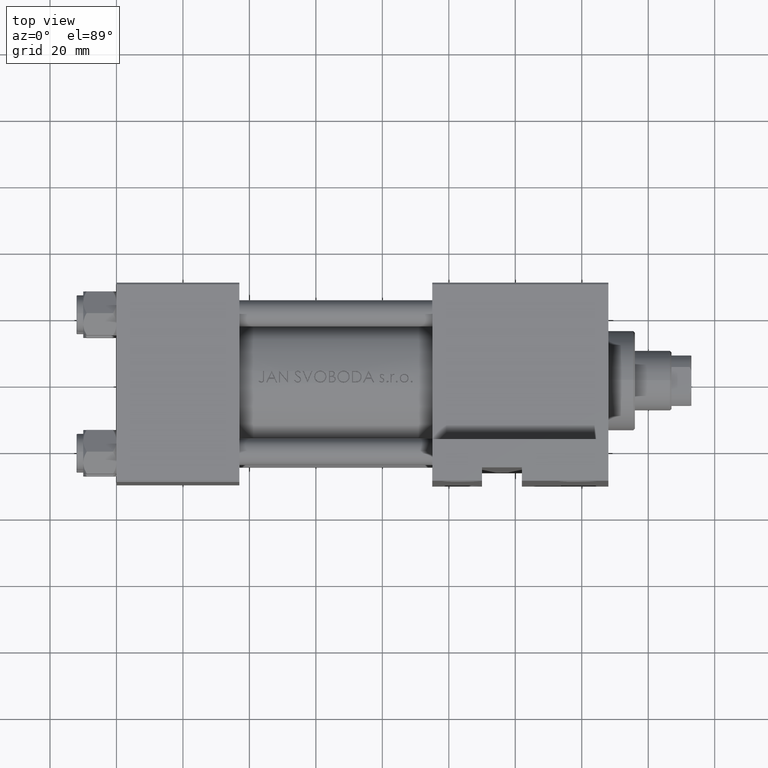
[diagram: clean part render]
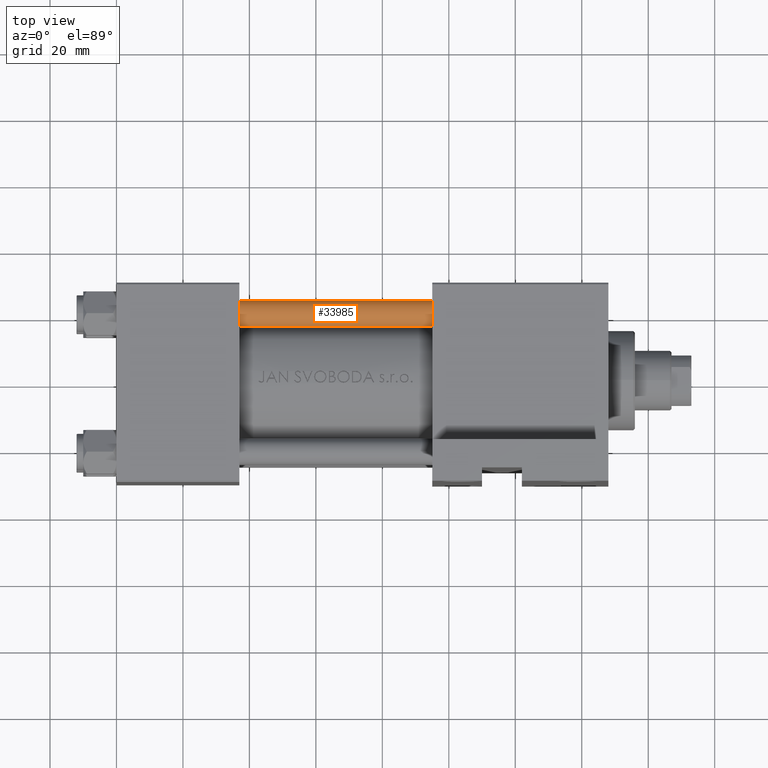
[diagram: same view with one face highlighted and labeled with its STEP entity id]
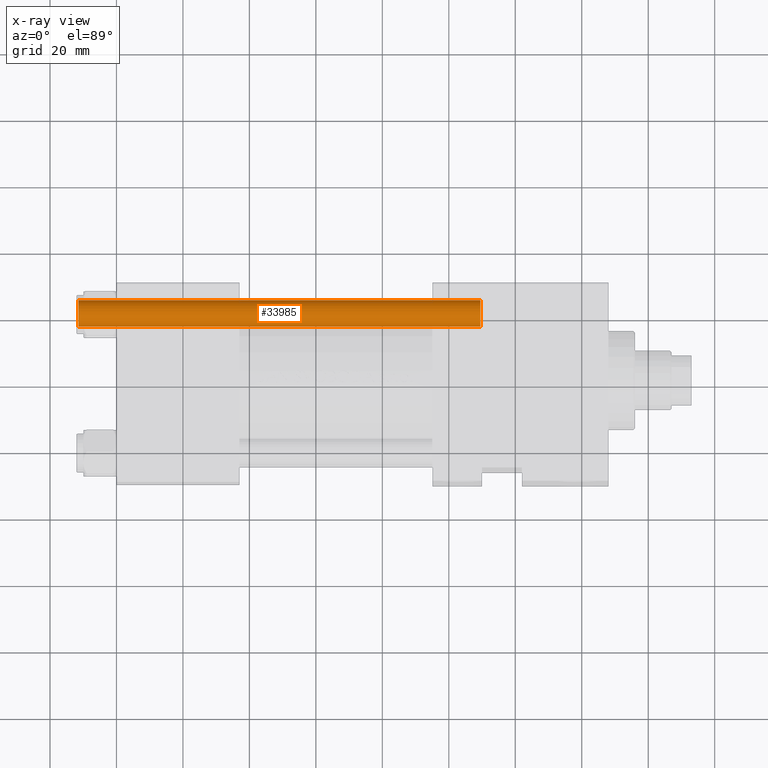
[diagram: x-ray of the same camera — body ghosted, the highlighted face saturated]
A machine part, top view. The second image highlights one B-rep face of the part: STEP entity #33985.
The next image is the same camera in x-ray: the body ghosted, the highlighted face saturated — about 0% of this face is hidden behind the body in this view.
In plain terms, the highlighted cylindrical surface (edge-blend (fillet) strip) has radius 4 mm, axis along (1, -0, 0).
Its self-contained STEP definition (entity closure, byte-faithful):
#1642 = CYLINDRICAL_SURFACE ( 'NONE', #17684, 4.000000000000000000 ) ;
#1813 = DIRECTION ( 'NONE',  ( -0.000000000000000000, -0.000000000000000000, -1.000000000000000000 ) ) ;
#2499 = EDGE_CURVE ( 'NONE', #40016, #12205, #13375, .T. ) ;
#5483 = LINE ( 'NONE', #21000, #14796 ) ;
#6338 = VERTEX_POINT ( 'NONE', #26594 ) ;
#7508 = ORIENTED_EDGE ( 'NONE', *, *, #25162, .T. ) ;
#8651 = CARTESIAN_POINT ( 'NONE',  ( -4.000000000000000000, 0.000000000000000000, 122.0000000000000000 ) ) ;
#11071 = EDGE_CURVE ( 'NONE', #6338, #40016, #27379, .T. ) ;
#11277 = AXIS2_PLACEMENT_3D ( 'NONE', #45533, #21424, #36473 ) ;
#12205 = VERTEX_POINT ( 'NONE', #22706 ) ;
#12974 = CARTESIAN_POINT ( 'NONE',  ( 0.000000000000000000, 0.000000000000000000, 122.0000000000000000 ) ) ;
#13375 = CIRCLE ( 'NONE', #28306, 4.000000000000000000 ) ;
#14402 = CARTESIAN_POINT ( 'NONE',  ( -4.000000000000000000, 0.000000000000000000, 0.5000000000000559552 ) ) ;
#14796 = VECTOR ( 'NONE', #1813, 1000.000000000000000 ) ;
#15594 = ORIENTED_EDGE ( 'NONE', *, *, #2499, .T. ) ;
#16905 = DIRECTION ( 'NONE',  ( -0.000000000000000000, -0.000000000000000000, -1.000000000000000000 ) ) ;
#17684 = AXIS2_PLACEMENT_3D ( 'NONE', #12974, #16905, #31935 ) ;
#19784 = VECTOR ( 'NONE', #35048, 1000.000000000000000 ) ;
#20709 = CIRCLE ( 'NONE', #11277, 4.000000000000000000 ) ;
#21000 = CARTESIAN_POINT ( 'NONE',  ( 4.000000000000000000, 4.898587196589411843E-16, 122.0000000000000000 ) ) ;
#21424 = DIRECTION ( 'NONE',  ( 0.000000000000000000, 0.000000000000000000, -1.000000000000000000 ) ) ;
#22664 = EDGE_CURVE ( 'NONE', #42758, #12205, #5483, .T. ) ;
#22706 = CARTESIAN_POINT ( 'NONE',  ( 4.000000000000000000, 4.898587196589411843E-16, 0.5000000000000559552 ) ) ;
#23596 = EDGE_LOOP ( 'NONE', ( #48138, #7508, #35543, #15594 ) ) ;
#25162 = EDGE_CURVE ( 'NONE', #42758, #6338, #20709, .T. ) ;
#26347 = CARTESIAN_POINT ( 'NONE',  ( 0.000000000000000000, 0.000000000000000000, 0.5000000000000559552 ) ) ;
#26594 = CARTESIAN_POINT ( 'NONE',  ( -4.000000000000000000, 0.000000000000000000, 121.5000000000000426 ) ) ;
#27379 = LINE ( 'NONE', #8651, #19784 ) ;
#28306 = AXIS2_PLACEMENT_3D ( 'NONE', #26347, #30534, #37948 ) ;
#30534 = DIRECTION ( 'NONE',  ( -0.000000000000000000, -0.000000000000000000, 1.000000000000000000 ) ) ;
#31935 = DIRECTION ( 'NONE',  ( -1.000000000000000000, 0.000000000000000000, 0.000000000000000000 ) ) ;
#33985 = ADVANCED_FACE ( 'NONE', ( #35406 ), #1642, .T. ) ;
#35048 = DIRECTION ( 'NONE',  ( -0.000000000000000000, -0.000000000000000000, -1.000000000000000000 ) ) ;
#35406 = FACE_OUTER_BOUND ( 'NONE', #23596, .T. ) ;
#35543 = ORIENTED_EDGE ( 'NONE', *, *, #11071, .T. ) ;
#36473 = DIRECTION ( 'NONE',  ( 1.000000000000000000, 0.000000000000000000, 0.000000000000000000 ) ) ;
#37948 = DIRECTION ( 'NONE',  ( 1.000000000000000000, 0.000000000000000000, 0.000000000000000000 ) ) ;
#38633 = CARTESIAN_POINT ( 'NONE',  ( 4.000000000000000000, 4.898587196589411843E-16, 121.5000000000000426 ) ) ;
#40016 = VERTEX_POINT ( 'NONE', #14402 ) ;
#42758 = VERTEX_POINT ( 'NONE', #38633 ) ;
#45533 = CARTESIAN_POINT ( 'NONE',  ( 0.000000000000000000, 0.000000000000000000, 121.5000000000000426 ) ) ;
#48138 = ORIENTED_EDGE ( 'NONE', *, *, #22664, .F. ) ;